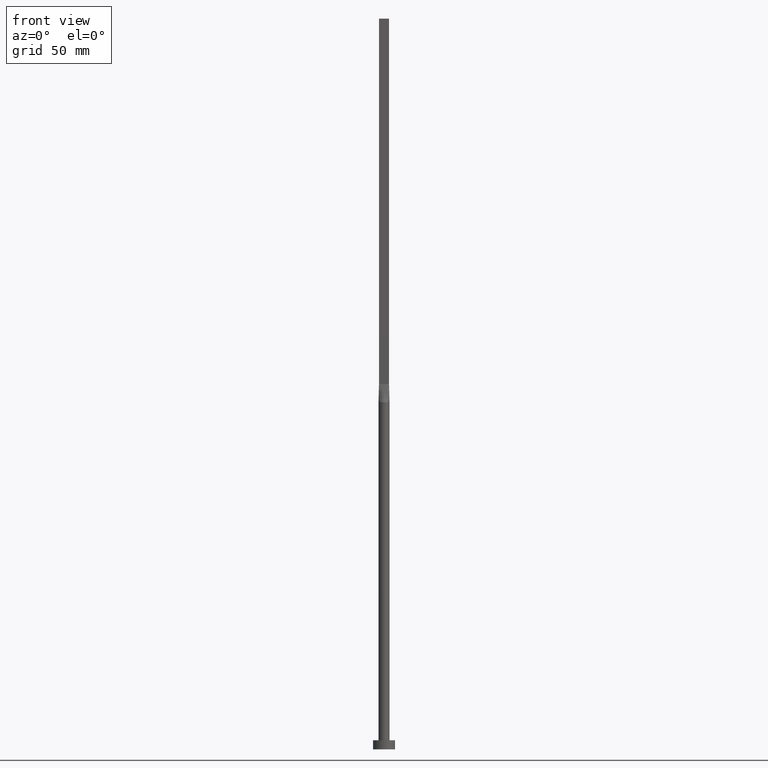
[diagram: clean part render]
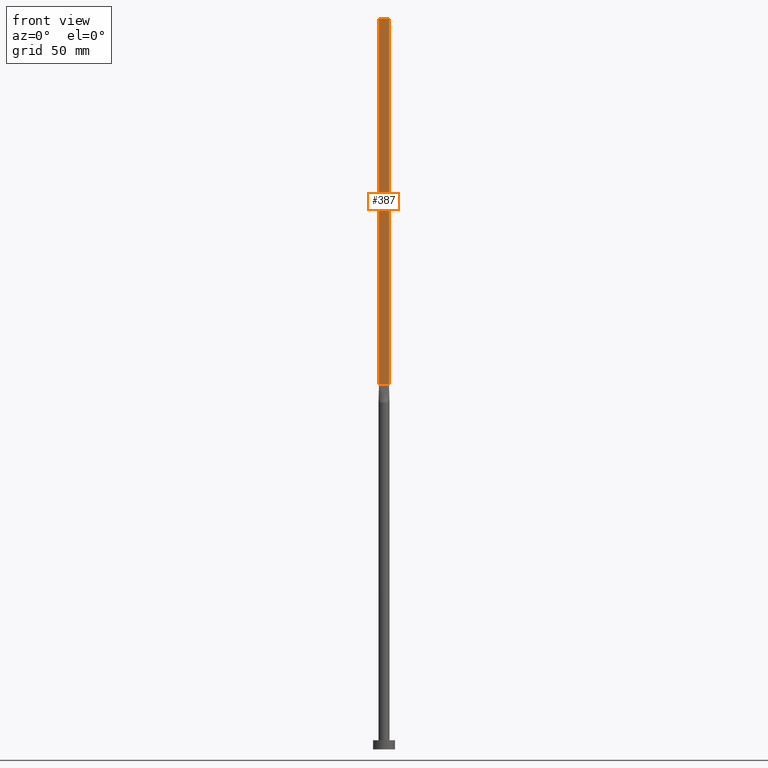
[diagram: same view with one face highlighted and labeled with its STEP entity id]
A machine part, front view. The second image highlights one B-rep face of the part: STEP entity #387.
In plain terms, the highlighted planar face has unit normal (0, 1, -0).
Its self-contained STEP definition (entity closure, byte-faithful):
#11 = VERTEX_POINT ( 'NONE', #308 ) ;
#14 = CARTESIAN_POINT ( 'NONE',  ( -2.750000000000000000, -0.7499999999999994449, 400.0000000000000000 ) ) ;
#20 = DIRECTION ( 'NONE',  ( 5.913830031739115543E-17, 1.000000000000000000, -0.000000000000000000 ) ) ;
#44 = DIRECTION ( 'NONE',  ( 1.000000000000000000, -5.913830031739115543E-17, 0.000000000000000000 ) ) ;
#80 = EDGE_CURVE ( 'NONE', #269, #125, #227, .T. ) ;
#104 = PLANE ( 'NONE',  #206 ) ;
#108 = ORIENTED_EDGE ( 'NONE', *, *, #195, .T. ) ;
#125 = VERTEX_POINT ( 'NONE', #530 ) ;
#133 = VECTOR ( 'NONE', #250, 1000.000000000000000 ) ;
#180 = ORIENTED_EDGE ( 'NONE', *, *, #523, .F. ) ;
#182 = CARTESIAN_POINT ( 'NONE',  ( -2.750000000000000000, -0.7499999999999994449, 200.0000000000000000 ) ) ;
#190 = ORIENTED_EDGE ( 'NONE', *, *, #556, .F. ) ;
#191 = DIRECTION ( 'NONE',  ( -1.000000000000000000, 5.913830031739115543E-17, 0.000000000000000000 ) ) ;
#195 = EDGE_CURVE ( 'NONE', #11, #269, #548, .T. ) ;
#206 = AXIS2_PLACEMENT_3D ( 'NONE', #14, #20, #191 ) ;
#209 = CARTESIAN_POINT ( 'NONE',  ( -2.750000000000000000, -0.7499999999999994449, 400.0000000000000000 ) ) ;
#227 = LINE ( 'NONE', #182, #411 ) ;
#232 = FACE_OUTER_BOUND ( 'NONE', #516, .T. ) ;
#244 = CARTESIAN_POINT ( 'NONE',  ( 2.750000000000000000, -0.7499999999999997780, 400.0000000000000000 ) ) ;
#250 = DIRECTION ( 'NONE',  ( -0.000000000000000000, -0.000000000000000000, -1.000000000000000000 ) ) ;
#269 = VERTEX_POINT ( 'NONE', #457 ) ;
#305 = CARTESIAN_POINT ( 'NONE',  ( 2.750000000000000000, -0.7499999999999997780, 400.0000000000000000 ) ) ;
#308 = CARTESIAN_POINT ( 'NONE',  ( -2.750000000000000000, -0.7499999999999994449, 400.0000000000000000 ) ) ;
#328 = CARTESIAN_POINT ( 'NONE',  ( -2.750000000000000000, -0.7499999999999994449, 400.0000000000000000 ) ) ;
#331 = VERTEX_POINT ( 'NONE', #305 ) ;
#387 = ADVANCED_FACE ( 'NONE', ( #232 ), #104, .F. ) ;
#396 = ORIENTED_EDGE ( 'NONE', *, *, #80, .T. ) ;
#410 = VECTOR ( 'NONE', #479, 1000.000000000000000 ) ;
#411 = VECTOR ( 'NONE', #44, 1000.000000000000000 ) ;
#435 = LINE ( 'NONE', #209, #410 ) ;
#457 = CARTESIAN_POINT ( 'NONE',  ( -2.750000000000000000, -0.7499999999999994449, 200.0000000000000000 ) ) ;
#472 = VECTOR ( 'NONE', #511, 1000.000000000000000 ) ;
#479 = DIRECTION ( 'NONE',  ( 1.000000000000000000, -5.913830031739115543E-17, 0.000000000000000000 ) ) ;
#511 = DIRECTION ( 'NONE',  ( -0.000000000000000000, -0.000000000000000000, -1.000000000000000000 ) ) ;
#516 = EDGE_LOOP ( 'NONE', ( #396, #190, #180, #108 ) ) ;
#523 = EDGE_CURVE ( 'NONE', #11, #331, #435, .T. ) ;
#530 = CARTESIAN_POINT ( 'NONE',  ( 2.750000000000000000, -0.7499999999999997780, 200.0000000000000000 ) ) ;
#548 = LINE ( 'NONE', #328, #133 ) ;
#556 = EDGE_CURVE ( 'NONE', #331, #125, #566, .T. ) ;
#566 = LINE ( 'NONE', #244, #472 ) ;